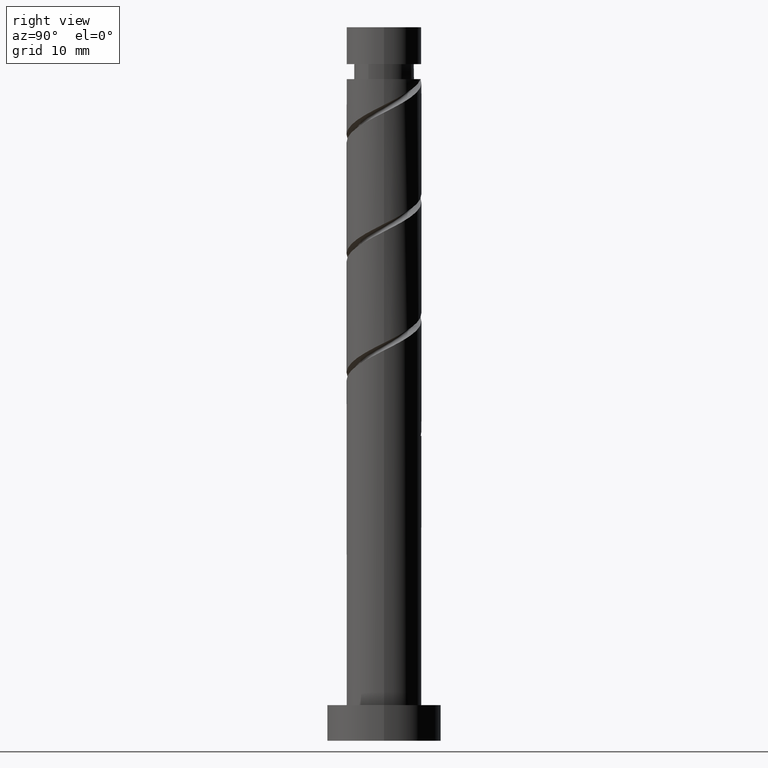
[diagram: clean part render]
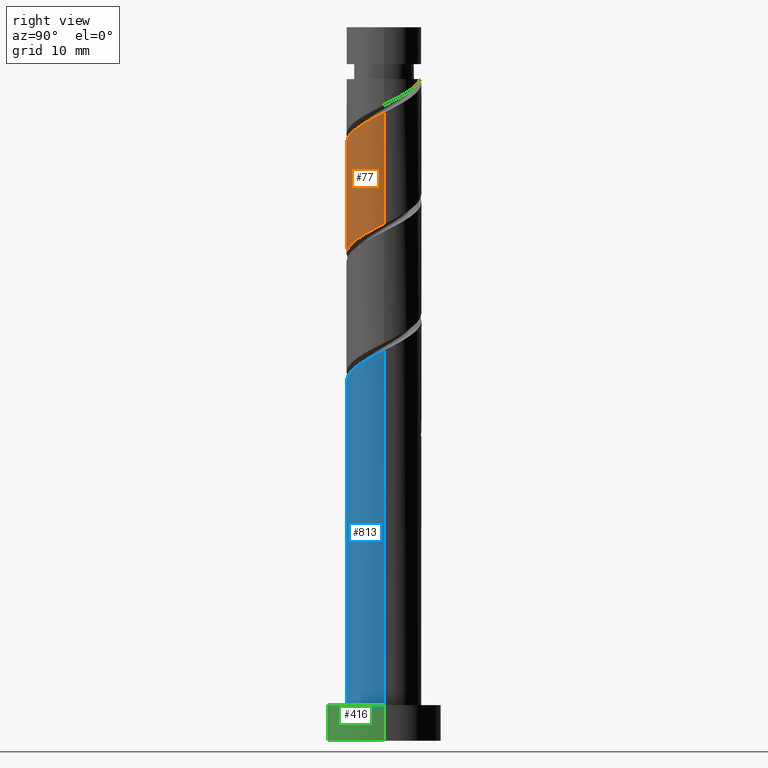
[diagram: same view with three faces highlighted in distinct colors, each labeled with its STEP entity id]
A machine part, right view with three faces highlighted in distinct colors.
Their STEP definitions:

[orange] entity #77 — the highlighted cylindrical surface (partial cylindrical patch) has radius 5.25 mm, axis along (-0, -0, -1).
#28 = CARTESIAN_POINT ( 'NONE',  ( -0.7779621673656053060, -5.192039567082273877, 83.47557151372683393 ) ) ;
#39 = CARTESIAN_POINT ( 'NONE',  ( -2.741425107455529364, -4.477397500804728203, 66.80890484706017673 ) ) ;
#77 = ADVANCED_FACE ( 'NONE', ( #1395 ), #252, .T. ) ;
#108 = CARTESIAN_POINT ( 'NONE',  ( 0.000000000000000000, 0.000000000000000000, 100.0000000000000000 ) ) ;
#140 = CARTESIAN_POINT ( 'NONE',  ( 2.506827424810088800, -4.612842536031337204, 69.58668262483791978 ) ) ;
#141 = CARTESIAN_POINT ( 'NONE',  ( -3.320196021672078501, -4.170821225057403048, 82.08668262483793399 ) ) ;
#142 = DIRECTION ( 'NONE',  ( -0.000000000000000000, -0.000000000000000000, -1.000000000000000000 ) ) ;
#173 = CARTESIAN_POINT ( 'NONE',  ( 1.044736808961951535, -5.145000000000006679, 84.40149743965275775 ) ) ;
#183 = VERTEX_POINT ( 'NONE', #619 ) ;
#198 = VERTEX_POINT ( 'NONE', #935 ) ;
#218 = CARTESIAN_POINT ( 'NONE',  ( 5.250000000000005329, -0.8560354520574027237, 87.60738970563171790 ) ) ;
#221 = VERTEX_POINT ( 'NONE', #712 ) ;
#239 = CARTESIAN_POINT ( 'NONE',  ( -5.248252532265624382, -0.1354450352266062252, 79.77186781002312443 ) ) ;
#252 = CYLINDRICAL_SURFACE ( 'NONE', #951, 5.250000000000000000 ) ;
#253 = CARTESIAN_POINT ( 'NONE',  ( 5.224369918152159009, -1.060853558236560357, 71.90149743965278617 ) ) ;
#259 = DIRECTION ( 'NONE',  ( -0.000000000000000000, -0.000000000000000000, -1.000000000000000000 ) ) ;
#285 = CARTESIAN_POINT ( 'NONE',  ( 5.250000000000000000, 6.429395695523604153E-16, 100.0000000000000000 ) ) ;
#289 = CARTESIAN_POINT ( 'NONE',  ( -3.530911090204053693, -3.994010288768718109, 66.34594188409720061 ) ) ;
#362 = CARTESIAN_POINT ( 'NONE',  ( -5.250000000000000888, -2.121333249658918145E-15, 64.09901899464151143 ) ) ;
#373 = EDGE_LOOP ( 'NONE', ( #726, #1445, #846, #1129 ) ) ;
#438 = CARTESIAN_POINT ( 'NONE',  ( 3.530911090204056357, -3.994010288768725214, 85.79038632854164348 ) ) ;
#454 = CARTESIAN_POINT ( 'NONE',  ( 2.741425107455531140, -4.477397500804735309, 85.32742336557868157 ) ) ;
#472 = CARTESIAN_POINT ( 'NONE',  ( -3.933332297989967419, -3.477268616829742864, 81.62371966187498629 ) ) ;
#490 = CARTESIAN_POINT ( 'NONE',  ( 0.1375344932168967305, -5.329215287159264847, 83.93853447668979584 ) ) ;
#493 = LINE ( 'NONE', #285, #675 ) ;
#516 = CARTESIAN_POINT ( 'NONE',  ( 4.546468574307848343, -2.783716008602085346, 70.97557151372684814 ) ) ;
#572 = DIRECTION ( 'NONE',  ( -1.000000000000000000, 0.000000000000000000, 0.000000000000000000 ) ) ;
#590 = CARTESIAN_POINT ( 'NONE',  ( -4.546468574307855448, -2.783716008602084457, 81.16075669891201017 ) ) ;
#602 = CARTESIAN_POINT ( 'NONE',  ( 0.7779621673656021974, -5.192039567082266771, 68.66075669891201017 ) ) ;
#619 = CARTESIAN_POINT ( 'NONE',  ( -5.250000000000007105, -3.286572640316614447E-15, 79.70397588466398986 ) ) ;
#623 = CARTESIAN_POINT ( 'NONE',  ( 4.885419246230004120, -1.922284783419320631, 71.43853447668979584 ) ) ;
#675 = VECTOR ( 'NONE', #259, 1000.000000000000000 ) ;
#684 = EDGE_CURVE ( 'NONE', #221, #198, #493, .T. ) ;
#693 = EDGE_CURVE ( 'NONE', #183, #817, #1044, .T. ) ;
#709 = CARTESIAN_POINT ( 'NONE',  ( -4.885419246230010337, -1.922284783419322185, 80.69779373594906247 ) ) ;
#712 = CARTESIAN_POINT ( 'NONE',  ( 5.250000000000007105, 3.286572640316614447E-15, 88.03730921799733267 ) ) ;
#716 = CARTESIAN_POINT ( 'NONE',  ( -5.250000000000000000, 0.000000000000000000, 100.0000000000000000 ) ) ;
#721 = CARTESIAN_POINT ( 'NONE',  ( 3.933332297989960313, -3.477268616829742420, 70.51260855076385781 ) ) ;
#726 = ORIENTED_EDGE ( 'NONE', *, *, #684, .F. ) ;
#747 = CARTESIAN_POINT ( 'NONE',  ( -5.250000000000000888, -2.121333249658918145E-15, 64.09901899464151143 ) ) ;
#773 = CARTESIAN_POINT ( 'NONE',  ( 5.250000000000007105, 3.286572640316614447E-15, 88.03730921799733267 ) ) ;
#817 = VERTEX_POINT ( 'NONE', #362 ) ;
#818 = CARTESIAN_POINT ( 'NONE',  ( 1.693458827948102874, -5.054863847005278465, 69.12371966187500050 ) ) ;
#823 = CARTESIAN_POINT ( 'NONE',  ( 5.250000000000001776, -0.06773379024311197705, 72.39833495404251096 ) ) ;
#846 = ORIENTED_EDGE ( 'NONE', *, *, #693, .T. ) ;
#898 = VECTOR ( 'NONE', #142, 1000.000000000000000 ) ;
#918 = CARTESIAN_POINT ( 'NONE',  ( -2.506827424810093241, -4.612842536031341645, 82.54964558780091011 ) ) ;
#935 = CARTESIAN_POINT ( 'NONE',  ( 5.250000000000001776, 6.722534946102204886E-17, 72.43235232797486844 ) ) ;
#951 = AXIS2_PLACEMENT_3D ( 'NONE', #108, #1383, #572 ) ;
#1041 = CARTESIAN_POINT ( 'NONE',  ( -0.1375344932169010603, -5.329215287159257741, 68.19779373594907668 ) ) ;
#1042 = CARTESIAN_POINT ( 'NONE',  ( -1.693458827948106871, -5.054863847005282906, 83.01260855076387202 ) ) ;
#1044 = LINE ( 'NONE', #716, #898 ) ;
#1052 = CARTESIAN_POINT ( 'NONE',  ( 5.250000000000001776, 6.722534946102204886E-17, 72.43235232797486844 ) ) ;
#1062 = EDGE_CURVE ( 'NONE', #198, #817, #1109, .T. ) ;
#1079 = CARTESIAN_POINT ( 'NONE',  ( 1.951939124707003703, -4.960784712840750288, 84.86446040261570545 ) ) ;
#1109 =( BOUNDED_CURVE ( )  B_SPLINE_CURVE ( 2, ( #1052, #823, #1274, #253, #623, #516, #721, #1154, #140, #818, #602, #1041, #1280, #1171, #39, #289, #1221, #1198, #1454, #1314, #747 ),
 .UNSPECIFIED., .F., .T. ) 
 B_SPLINE_CURVE_WITH_KNOTS ( ( 3, 2, 2, 2, 2, 2, 2, 2, 2, 2, 3 ),
 ( 0.5545248053855290626, 0.5555555555555555802, 0.5694444444444444198, 0.5833333333333333703, 0.5972222222222222099, 0.6111111111111111605, 0.6250000000000000000, 0.6388888888888888395, 0.6527777777777777901, 0.6666666666666666297, 0.6795248053855290626 ),
 .UNSPECIFIED. ) 
 CURVE ( )  GEOMETRIC_REPRESENTATION_ITEM ( )  RATIONAL_B_SPLINE_CURVE ( ( 0.9071930855141207006, 0.9080659294509683122, 0.9090909090909083945, 0.8952797754656429685, 0.9090909090909083945, 0.8952797754656429685, 0.9090909090909083945, 0.8952797754656429685, 0.9090909090909083945, 0.8952797754656429685, 0.9090909090909083945, 0.8952797754656429685, 0.9090909090909083945, 0.8952797754656429685, 0.9090909090909083945, 0.8952797754656429685, 0.9090909090909083945, 0.8952797754656429685, 0.9090909090909083945, 0.8963047551055830509, 0.9071930855141207006 ) ) 
 REPRESENTATION_ITEM ( '' )  );
#1129 = ORIENTED_EDGE ( 'NONE', *, *, #1062, .F. ) ;
#1147 = CARTESIAN_POINT ( 'NONE',  ( -5.224369918152165226, -1.060853558236559468, 80.23483077298611477 ) ) ;
#1154 = CARTESIAN_POINT ( 'NONE',  ( 3.320196021672072284, -4.170821225057398607, 70.04964558780092432 ) ) ;
#1171 = CARTESIAN_POINT ( 'NONE',  ( -1.951939124707005702, -4.960784712840742294, 67.27186781002312443 ) ) ;
#1198 = CARTESIAN_POINT ( 'NONE',  ( -4.684003067524749930, -2.545499278557176392, 65.42001595817127679 ) ) ;
#1221 = CARTESIAN_POINT ( 'NONE',  ( -4.107457078864401367, -3.269754783662945918, 65.88297892113425291 ) ) ;
#1259 = CARTESIAN_POINT ( 'NONE',  ( 4.978069106951918066, -1.667731383170265147, 87.17927521743055763 ) ) ;
#1262 =( BOUNDED_CURVE ( )  B_SPLINE_CURVE ( 2, ( #1268, #1380, #239, #1147, #709, #590, #472, #141, #918, #1042, #28, #490, #173, #1079, #454, #438, #1353, #1369, #1259, #218, #773 ),
 .UNSPECIFIED., .F., .T. ) 
 B_SPLINE_CURVE_WITH_KNOTS ( ( 3, 2, 2, 2, 2, 2, 2, 2, 2, 2, 3 ),
 ( 0.5545248053855291737, 0.5555555555555555802, 0.5694444444444444198, 0.5833333333333332593, 0.5972222222222222099, 0.6111111111111111605, 0.6250000000000000000, 0.6388888888888888395, 0.6527777777777777901, 0.6666666666666667407, 0.6795248053855290626 ),
 .UNSPECIFIED. ) 
 CURVE ( )  GEOMETRIC_REPRESENTATION_ITEM ( )  RATIONAL_B_SPLINE_CURVE ( ( 0.9071930855141261407, 0.9080659294509736412, 0.9090909090909136125, 0.8952797754656481866, 0.9090909090909136125, 0.8952797754656481866, 0.9090909090909136125, 0.8952797754656481866, 0.9090909090909136125, 0.8952797754656481866, 0.9090909090909136125, 0.8952797754656481866, 0.9090909090909136125, 0.8952797754656481866, 0.9090909090909136125, 0.8952797754656481866, 0.9090909090909136125, 0.8952797754656481866, 0.9090909090909136125, 0.8963047551055882689, 0.9071930855141258077 ) ) 
 REPRESENTATION_ITEM ( '' )  );
#1268 = CARTESIAN_POINT ( 'NONE',  ( -5.250000000000007105, -3.286572640316614447E-15, 79.70397588466398986 ) ) ;
#1274 = CARTESIAN_POINT ( 'NONE',  ( 5.248252532265618164, -0.1354450352266092783, 72.36446040261573387 ) ) ;
#1280 = CARTESIAN_POINT ( 'NONE',  ( -1.044736808961951979, -5.145000000000001350, 67.73483077298608634 ) ) ;
#1314 = CARTESIAN_POINT ( 'NONE',  ( -5.250000000000000000, -0.8560354520573968395, 64.52893850700712619 ) ) ;
#1353 = CARTESIAN_POINT ( 'NONE',  ( 4.107457078864405808, -3.269754783662951247, 86.25334929150463381 ) ) ;
#1369 = CARTESIAN_POINT ( 'NONE',  ( 4.684003067524752595, -2.545499278557180389, 86.71631225446758151 ) ) ;
#1380 = CARTESIAN_POINT ( 'NONE',  ( -5.250000000000006217, -0.06773379024311554364, 79.73799325859636156 ) ) ;
#1383 = DIRECTION ( 'NONE',  ( -0.000000000000000000, -0.000000000000000000, -1.000000000000000000 ) ) ;
#1395 = FACE_OUTER_BOUND ( 'NONE', #373, .T. ) ;
#1410 = EDGE_CURVE ( 'NONE', #183, #221, #1262, .T. ) ;
#1445 = ORIENTED_EDGE ( 'NONE', *, *, #1410, .F. ) ;
#1454 = CARTESIAN_POINT ( 'NONE',  ( -4.978069106951913625, -1.667731383170258708, 64.95705299520831488 ) ) ;

[blue] entity #813 — the highlighted cylindrical surface (partial cylindrical patch) has radius 5.25 mm, axis along (-0, -0, -1).
#11 = CARTESIAN_POINT ( 'NONE',  ( 1.951939124707003703, -4.960784712840750288, 51.53112706928239106 ) ) ;
#95 = VERTEX_POINT ( 'NONE', #336 ) ;
#101 = CARTESIAN_POINT ( 'NONE',  ( 3.530911090204056357, -3.994010288768725214, 52.45705299520831488 ) ) ;
#121 = CARTESIAN_POINT ( 'NONE',  ( -5.250000000000007105, 3.473309722152786108E-15, 46.37064255133068258 ) ) ;
#128 = CARTESIAN_POINT ( 'NONE',  ( 0.1375344932168967305, -5.329215287159264847, 50.60520114335646724 ) ) ;
#162 = DIRECTION ( 'NONE',  ( -1.000000000000000000, 0.000000000000000000, 0.000000000000000000 ) ) ;
#234 = CARTESIAN_POINT ( 'NONE',  ( -3.933332297989967419, -3.477268616829742864, 48.29038632854164348 ) ) ;
#240 = CARTESIAN_POINT ( 'NONE',  ( -5.224369918152165226, -1.060853558236559468, 46.90149743965276485 ) ) ;
#243 = ORIENTED_EDGE ( 'NONE', *, *, #1376, .T. ) ;
#251 = AXIS2_PLACEMENT_3D ( 'NONE', #596, #1178, #162 ) ;
#307 = CARTESIAN_POINT ( 'NONE',  ( 4.684003067524752595, -2.545499278557180389, 53.38297892113424581 ) ) ;
#331 = CARTESIAN_POINT ( 'NONE',  ( 2.741425107455531140, -4.477397500804735309, 51.99409003224534587 ) ) ;
#336 = CARTESIAN_POINT ( 'NONE',  ( 5.250000000000000000, 6.429395695523604153E-16, 5.000000000000000000 ) ) ;
#342 = CARTESIAN_POINT ( 'NONE',  ( -5.250000000000006217, -0.06773379024310731411, 46.40465992526302585 ) ) ;
#353 = EDGE_CURVE ( 'NONE', #1191, #95, #832, .T. ) ;
#384 = LINE ( 'NONE', #1421, #853 ) ;
#414 = CARTESIAN_POINT ( 'NONE',  ( -5.250000000000007105, 3.473309722152785713E-15, 46.37064255133068258 ) ) ;
#418 = VERTEX_POINT ( 'NONE', #1462 ) ;
#446 = CARTESIAN_POINT ( 'NONE',  ( -3.320196021672078501, -4.170821225057403048, 48.75334929150461249 ) ) ;
#474 = VERTEX_POINT ( 'NONE', #414 ) ;
#501 = CYLINDRICAL_SURFACE ( 'NONE', #251, 5.250000000000000000 ) ;
#539 = CARTESIAN_POINT ( 'NONE',  ( 4.107457078864405808, -3.269754783662951247, 52.92001595817128390 ) ) ;
#596 = CARTESIAN_POINT ( 'NONE',  ( 0.000000000000000000, 0.000000000000000000, 100.0000000000000000 ) ) ;
#616 = DIRECTION ( 'NONE',  ( -0.000000000000000000, -0.000000000000000000, -1.000000000000000000 ) ) ;
#652 = CARTESIAN_POINT ( 'NONE',  ( 0.000000000000000000, 0.000000000000000000, 5.000000000000000000 ) ) ;
#667 = CARTESIAN_POINT ( 'NONE',  ( 4.978069106951918066, -1.667731383170265147, 53.84594188409720772 ) ) ;
#671 = CARTESIAN_POINT ( 'NONE',  ( -4.885419246230010337, -1.922284783419322185, 47.36446040261572676 ) ) ;
#695 = ORIENTED_EDGE ( 'NONE', *, *, #353, .T. ) ;
#774 = VECTOR ( 'NONE', #1459, 1000.000000000000000 ) ;
#813 = ADVANCED_FACE ( 'NONE', ( #1034 ), #501, .T. ) ;
#829 = EDGE_CURVE ( 'NONE', #418, #95, #384, .T. ) ;
#832 = CIRCLE ( 'NONE', #1128, 5.250000000000000000 ) ;
#853 = VECTOR ( 'NONE', #616, 1000.000000000000000 ) ;
#854 = ORIENTED_EDGE ( 'NONE', *, *, #829, .F. ) ;
#856 = CARTESIAN_POINT ( 'NONE',  ( -5.250000000000000000, 0.000000000000000000, 5.000000000000000000 ) ) ;
#875 = EDGE_LOOP ( 'NONE', ( #854, #1105, #243, #695 ) ) ;
#892 = LINE ( 'NONE', #1138, #774 ) ;
#902 = CARTESIAN_POINT ( 'NONE',  ( -5.248252532265624382, -0.1354450352266062252, 46.43853447668980294 ) ) ;
#980 = CARTESIAN_POINT ( 'NONE',  ( 5.250000000000007105, -3.458370755605892201E-15, 54.70397588466401118 ) ) ;
#988 = CARTESIAN_POINT ( 'NONE',  ( 5.250000000000008882, -0.8560354520573950632, 54.27405637229839641 ) ) ;
#1001 = CARTESIAN_POINT ( 'NONE',  ( -4.546468574307855448, -2.783716008602084457, 47.82742336557870999 ) ) ;
#1018 = CARTESIAN_POINT ( 'NONE',  ( -0.7779621673656053060, -5.192039567082273877, 50.14223818039351954 ) ) ;
#1027 = CARTESIAN_POINT ( 'NONE',  ( 1.044736808961951535, -5.145000000000006679, 51.06816410631942205 ) ) ;
#1034 = FACE_OUTER_BOUND ( 'NONE', #875, .T. ) ;
#1093 = DIRECTION ( 'NONE',  ( 1.000000000000000000, 0.000000000000000000, 0.000000000000000000 ) ) ;
#1105 = ORIENTED_EDGE ( 'NONE', *, *, #1427, .F. ) ;
#1128 = AXIS2_PLACEMENT_3D ( 'NONE', #652, #1207, #1093 ) ;
#1138 = CARTESIAN_POINT ( 'NONE',  ( -5.250000000000000000, 0.000000000000000000, 100.0000000000000000 ) ) ;
#1148 = CARTESIAN_POINT ( 'NONE',  ( -2.506827424810093241, -4.612842536031341645, 49.21631225446757441 ) ) ;
#1178 = DIRECTION ( 'NONE',  ( -0.000000000000000000, -0.000000000000000000, -1.000000000000000000 ) ) ;
#1191 = VERTEX_POINT ( 'NONE', #856 ) ;
#1207 = DIRECTION ( 'NONE',  ( 0.000000000000000000, 0.000000000000000000, 1.000000000000000000 ) ) ;
#1361 = CARTESIAN_POINT ( 'NONE',  ( -1.693458827948106871, -5.054863847005282906, 49.67927521743053632 ) ) ;
#1376 = EDGE_CURVE ( 'NONE', #474, #1191, #892, .T. ) ;
#1421 = CARTESIAN_POINT ( 'NONE',  ( 5.250000000000000000, 6.429395695523604153E-16, 100.0000000000000000 ) ) ;
#1427 = EDGE_CURVE ( 'NONE', #474, #418, #1460, .T. ) ;
#1459 = DIRECTION ( 'NONE',  ( -0.000000000000000000, -0.000000000000000000, -1.000000000000000000 ) ) ;
#1460 =( BOUNDED_CURVE ( )  B_SPLINE_CURVE ( 2, ( #121, #342, #902, #240, #671, #1001, #234, #446, #1148, #1361, #1018, #128, #1027, #11, #331, #101, #539, #307, #667, #988, #980 ),
 .UNSPECIFIED., .F., .T. ) 
 B_SPLINE_CURVE_WITH_KNOTS ( ( 3, 2, 2, 2, 2, 2, 2, 2, 2, 2, 3 ),
 ( 0.05452480538552904182, 0.05555555555555558023, 0.06944444444444441977, 0.08333333333333337034, 0.09722222222222220989, 0.1111111111111111605, 0.1250000000000000000, 0.1388888888888888395, 0.1527777777777777901, 0.1666666666666666297, 0.1795248053855291737 ),
 .UNSPECIFIED. ) 
 CURVE ( )  GEOMETRIC_REPRESENTATION_ITEM ( )  RATIONAL_B_SPLINE_CURVE ( ( 0.9071930855141256966, 0.9080659294509734192, 0.9090909090909136125, 0.8952797754656481866, 0.9090909090909136125, 0.8952797754656481866, 0.9090909090909136125, 0.8952797754656481866, 0.9090909090909136125, 0.8952797754656481866, 0.9090909090909136125, 0.8952797754656481866, 0.9090909090909136125, 0.8952797754656481866, 0.9090909090909136125, 0.8952797754656481866, 0.9090909090909136125, 0.8952797754656481866, 0.9090909090909136125, 0.8963047551055881579, 0.9071930855141260297 ) ) 
 REPRESENTATION_ITEM ( '' )  );
#1462 = CARTESIAN_POINT ( 'NONE',  ( 5.250000000000007105, -3.458370755605892201E-15, 54.70397588466401118 ) ) ;

[green] entity #416 — the highlighted cylindrical surface (partial cylindrical patch) has radius 8 mm, axis along (-0, -0, -1).
#35 = VERTEX_POINT ( 'NONE', #116 ) ;
#65 = LINE ( 'NONE', #967, #274 ) ;
#109 = DIRECTION ( 'NONE',  ( 0.000000000000000000, 0.000000000000000000, 1.000000000000000000 ) ) ;
#116 = CARTESIAN_POINT ( 'NONE',  ( -8.000000000000000000, 0.000000000000000000, 0.000000000000000000 ) ) ;
#168 = DIRECTION ( 'NONE',  ( 0.000000000000000000, 0.000000000000000000, 1.000000000000000000 ) ) ;
#212 = LINE ( 'NONE', #1199, #271 ) ;
#271 = VECTOR ( 'NONE', #1215, 1000.000000000000000 ) ;
#274 = VECTOR ( 'NONE', #973, 1000.000000000000000 ) ;
#295 = ORIENTED_EDGE ( 'NONE', *, *, #436, .T. ) ;
#369 = DIRECTION ( 'NONE',  ( 1.000000000000000000, 0.000000000000000000, 0.000000000000000000 ) ) ;
#374 = CIRCLE ( 'NONE', #1440, 8.000000000000000000 ) ;
#375 = CARTESIAN_POINT ( 'NONE',  ( 0.000000000000000000, 0.000000000000000000, 0.000000000000000000 ) ) ;
#411 = AXIS2_PLACEMENT_3D ( 'NONE', #375, #168, #369 ) ;
#416 = ADVANCED_FACE ( 'NONE', ( #969 ), #1102, .T. ) ;
#436 = EDGE_CURVE ( 'NONE', #1032, #35, #212, .T. ) ;
#498 = EDGE_LOOP ( 'NONE', ( #981, #735, #295, #890 ) ) ;
#523 = CARTESIAN_POINT ( 'NONE',  ( 8.000000000000000000, 9.797174393178825657E-16, 0.000000000000000000 ) ) ;
#641 = DIRECTION ( 'NONE',  ( -1.000000000000000000, 0.000000000000000000, 0.000000000000000000 ) ) ;
#656 = AXIS2_PLACEMENT_3D ( 'NONE', #1231, #1336, #641 ) ;
#657 = CARTESIAN_POINT ( 'NONE',  ( 0.000000000000000000, 0.000000000000000000, 5.000000000000000000 ) ) ;
#735 = ORIENTED_EDGE ( 'NONE', *, *, #1277, .F. ) ;
#890 = ORIENTED_EDGE ( 'NONE', *, *, #1054, .T. ) ;
#906 = DIRECTION ( 'NONE',  ( 1.000000000000000000, 0.000000000000000000, 0.000000000000000000 ) ) ;
#967 = CARTESIAN_POINT ( 'NONE',  ( 8.000000000000000000, 9.797174393178825657E-16, 5.000000000000000000 ) ) ;
#969 = FACE_OUTER_BOUND ( 'NONE', #498, .T. ) ;
#973 = DIRECTION ( 'NONE',  ( -0.000000000000000000, -0.000000000000000000, -1.000000000000000000 ) ) ;
#981 = ORIENTED_EDGE ( 'NONE', *, *, #1131, .F. ) ;
#1032 = VERTEX_POINT ( 'NONE', #1391 ) ;
#1053 = CIRCLE ( 'NONE', #411, 8.000000000000000000 ) ;
#1054 = EDGE_CURVE ( 'NONE', #35, #1339, #1053, .T. ) ;
#1102 = CYLINDRICAL_SURFACE ( 'NONE', #656, 8.000000000000000000 ) ;
#1131 = EDGE_CURVE ( 'NONE', #1386, #1339, #65, .T. ) ;
#1199 = CARTESIAN_POINT ( 'NONE',  ( -8.000000000000000000, 0.000000000000000000, 5.000000000000000000 ) ) ;
#1215 = DIRECTION ( 'NONE',  ( -0.000000000000000000, -0.000000000000000000, -1.000000000000000000 ) ) ;
#1231 = CARTESIAN_POINT ( 'NONE',  ( 0.000000000000000000, 0.000000000000000000, 5.000000000000000000 ) ) ;
#1277 = EDGE_CURVE ( 'NONE', #1032, #1386, #374, .T. ) ;
#1336 = DIRECTION ( 'NONE',  ( -0.000000000000000000, -0.000000000000000000, -1.000000000000000000 ) ) ;
#1339 = VERTEX_POINT ( 'NONE', #523 ) ;
#1386 = VERTEX_POINT ( 'NONE', #1409 ) ;
#1391 = CARTESIAN_POINT ( 'NONE',  ( -8.000000000000000000, 0.000000000000000000, 5.000000000000000000 ) ) ;
#1409 = CARTESIAN_POINT ( 'NONE',  ( 8.000000000000000000, 9.797174393178825657E-16, 5.000000000000000000 ) ) ;
#1440 = AXIS2_PLACEMENT_3D ( 'NONE', #657, #109, #906 ) ;